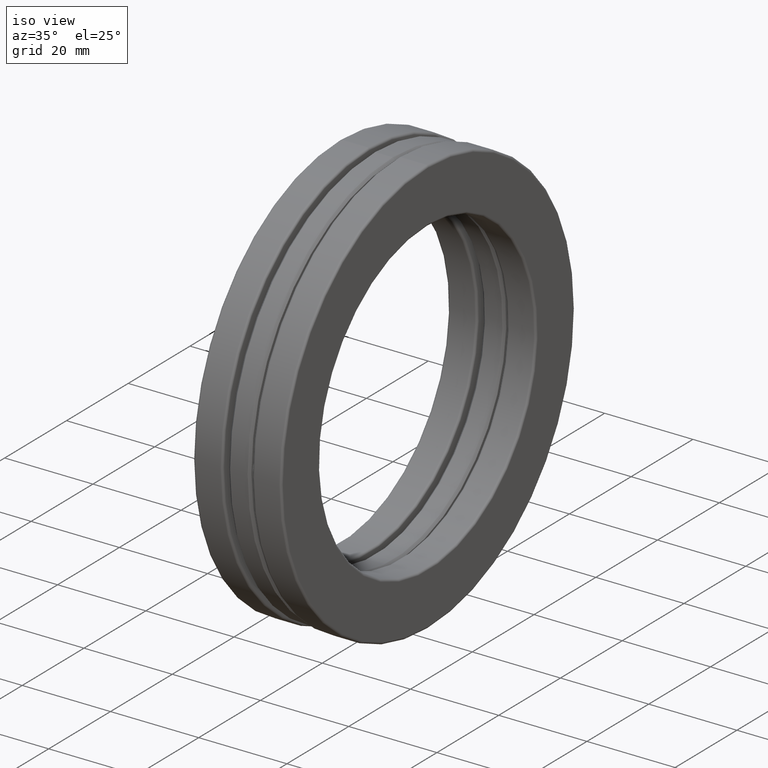
[diagram: clean part render]
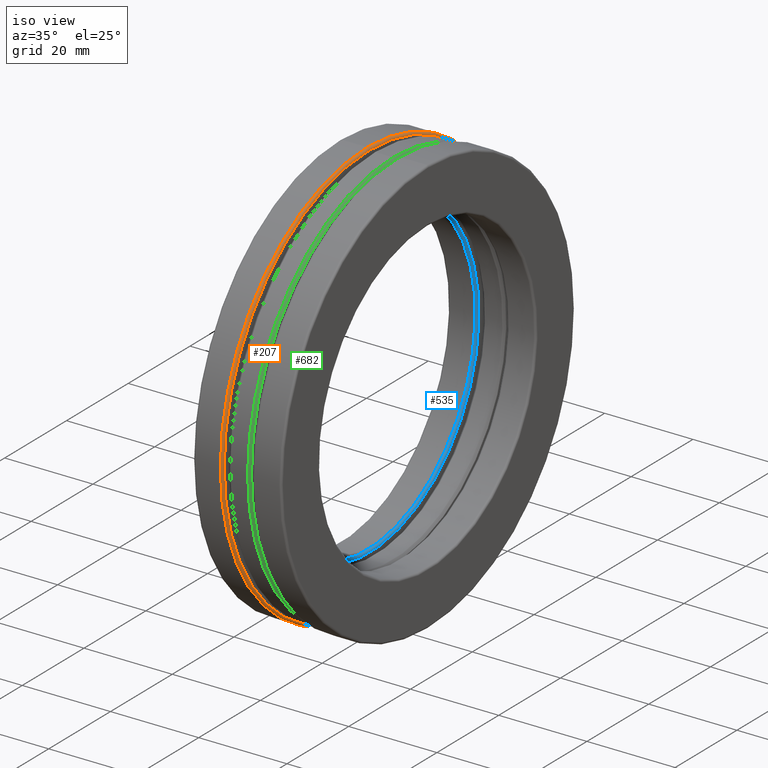
[diagram: same view with three faces highlighted in distinct colors, each labeled with its STEP entity id]
A machine part, iso view with three faces highlighted in distinct colors.
Their STEP definitions:

[orange] entity #207 — the highlighted toroidal blend (fillet) surface has major radius 46.99 mm and minor (blend) radius 0.508 mm.
#24 = DIRECTION ( 'NONE',  ( 0.0000000000000000000, 0.0000000000000000000, 1.000000000000000000 ) ) ;
#40 = DIRECTION ( 'NONE',  ( 0.0000000000000000000, 0.0000000000000000000, 1.000000000000000000 ) ) ;
#75 = CARTESIAN_POINT ( 'NONE',  ( -0.1311692899999999700, 0.0000000000000000000, 1.849999999999999900 ) ) ;
#104 = CARTESIAN_POINT ( 'NONE',  ( -0.1511692899999999600, 0.0000000000000000000, 0.0000000000000000000 ) ) ;
#134 = EDGE_LOOP ( 'NONE', ( #439 ) ) ;
#201 = CARTESIAN_POINT ( 'NONE',  ( -0.1511692899999999600, 0.0000000000000000000, 1.870000000000000100 ) ) ;
#207 = ADVANCED_FACE ( 'NONE', ( #765, #219 ), #273, .T. ) ;
#219 = FACE_OUTER_BOUND ( 'NONE', #685, .T. ) ;
#232 = DIRECTION ( 'NONE',  ( -1.000000000000000000, -0.0000000000000000000, -0.0000000000000000000 ) ) ;
#248 = DIRECTION ( 'NONE',  ( -1.000000000000000000, -0.0000000000000000000, -0.0000000000000000000 ) ) ;
#273 = TOROIDAL_SURFACE ( 'NONE', #815, 1.849999999999999900, 0.02000000000000002500 ) ;
#307 = VERTEX_POINT ( 'NONE', #201 ) ;
#318 = DIRECTION ( 'NONE',  ( 0.0000000000000000000, 0.0000000000000000000, 1.000000000000000000 ) ) ;
#361 = ORIENTED_EDGE ( 'NONE', *, *, #370, .T. ) ;
#370 = EDGE_CURVE ( 'NONE', #602, #602, #475, .T. ) ;
#406 = DIRECTION ( 'NONE',  ( -1.000000000000000000, -0.0000000000000000000, -0.0000000000000000000 ) ) ;
#439 = ORIENTED_EDGE ( 'NONE', *, *, #569, .F. ) ;
#475 = CIRCLE ( 'NONE', #719, 1.849999999999999900 ) ;
#537 = CARTESIAN_POINT ( 'NONE',  ( -0.1311692899999999700, 0.0000000000000000000, 0.0000000000000000000 ) ) ;
#569 = EDGE_CURVE ( 'NONE', #307, #307, #694, .T. ) ;
#602 = VERTEX_POINT ( 'NONE', #75 ) ;
#624 = AXIS2_PLACEMENT_3D ( 'NONE', #104, #232, #40 ) ;
#647 = CARTESIAN_POINT ( 'NONE',  ( -0.1511692899999999600, 0.0000000000000000000, 0.0000000000000000000 ) ) ;
#685 = EDGE_LOOP ( 'NONE', ( #361 ) ) ;
#694 = CIRCLE ( 'NONE', #624, 1.870000000000000100 ) ;
#719 = AXIS2_PLACEMENT_3D ( 'NONE', #537, #406, #24 ) ;
#765 = FACE_OUTER_BOUND ( 'NONE', #134, .T. ) ;
#815 = AXIS2_PLACEMENT_3D ( 'NONE', #647, #248, #318 ) ;

[blue] entity #535 — the highlighted toroidal blend (fillet) surface has major radius 35.5092 mm and minor (blend) radius 0.508 mm.
#55 = TOROIDAL_SURFACE ( 'NONE', #747, 1.397999999999999900, 0.02000000000000000700 ) ;
#86 = EDGE_CURVE ( 'NONE', #262, #262, #795, .T. ) ;
#136 = CARTESIAN_POINT ( 'NONE',  ( -0.1311692899999998300, 0.0000000000000000000, 1.397999999999999900 ) ) ;
#137 = CARTESIAN_POINT ( 'NONE',  ( -0.1311692899999998300, 0.0000000000000000000, 0.0000000000000000000 ) ) ;
#168 = CIRCLE ( 'NONE', #659, 1.397999999999999900 ) ;
#182 = ORIENTED_EDGE ( 'NONE', *, *, #86, .T. ) ;
#253 = EDGE_LOOP ( 'NONE', ( #297 ) ) ;
#262 = VERTEX_POINT ( 'NONE', #652 ) ;
#270 = VERTEX_POINT ( 'NONE', #136 ) ;
#294 = DIRECTION ( 'NONE',  ( -1.000000000000000000, -0.0000000000000000000, -0.0000000000000000000 ) ) ;
#295 = CARTESIAN_POINT ( 'NONE',  ( -0.1511692899999998200, 0.0000000000000000000, 0.0000000000000000000 ) ) ;
#297 = ORIENTED_EDGE ( 'NONE', *, *, #417, .F. ) ;
#298 = DIRECTION ( 'NONE',  ( -1.000000000000000000, -0.0000000000000000000, -0.0000000000000000000 ) ) ;
#311 = DIRECTION ( 'NONE',  ( 0.0000000000000000000, 0.0000000000000000000, 1.000000000000000000 ) ) ;
#342 = DIRECTION ( 'NONE',  ( -1.000000000000000000, -0.0000000000000000000, -0.0000000000000000000 ) ) ;
#363 = CARTESIAN_POINT ( 'NONE',  ( -0.1511692899999997900, 0.0000000000000000000, 0.0000000000000000000 ) ) ;
#417 = EDGE_CURVE ( 'NONE', #270, #270, #168, .T. ) ;
#535 = ADVANCED_FACE ( 'NONE', ( #725, #583 ), #55, .T. ) ;
#583 = FACE_OUTER_BOUND ( 'NONE', #676, .T. ) ;
#600 = DIRECTION ( 'NONE',  ( 0.0000000000000000000, 0.0000000000000000000, 1.000000000000000000 ) ) ;
#652 = CARTESIAN_POINT ( 'NONE',  ( -0.1511692899999998200, 0.0000000000000000000, 1.377999999999999900 ) ) ;
#659 = AXIS2_PLACEMENT_3D ( 'NONE', #137, #342, #600 ) ;
#676 = EDGE_LOOP ( 'NONE', ( #182 ) ) ;
#679 = DIRECTION ( 'NONE',  ( 0.0000000000000000000, 0.0000000000000000000, 1.000000000000000000 ) ) ;
#725 = FACE_OUTER_BOUND ( 'NONE', #253, .T. ) ;
#729 = AXIS2_PLACEMENT_3D ( 'NONE', #295, #298, #311 ) ;
#747 = AXIS2_PLACEMENT_3D ( 'NONE', #363, #294, #679 ) ;
#795 = CIRCLE ( 'NONE', #729, 1.377999999999999900 ) ;

[green] entity #682 — the highlighted conical surface has half-angle 45 deg.
#28 = CIRCLE ( 'NONE', #222, 1.829999999999999600 ) ;
#50 = DIRECTION ( 'NONE',  ( -1.000000000000000000, -0.0000000000000000000, -0.0000000000000000000 ) ) ;
#58 = AXIS2_PLACEMENT_3D ( 'NONE', #259, #649, #702 ) ;
#81 = ORIENTED_EDGE ( 'NONE', *, *, #274, .F. ) ;
#169 = EDGE_CURVE ( 'NONE', #673, #673, #28, .T. ) ;
#222 = AXIS2_PLACEMENT_3D ( 'NONE', #813, #50, #633 ) ;
#225 = VERTEX_POINT ( 'NONE', #716 ) ;
#259 = CARTESIAN_POINT ( 'NONE',  ( 0.07837499999999998600, 0.0000000000000000000, 0.0000000000000000000 ) ) ;
#260 = CONICAL_SURFACE ( 'NONE', #348, 1.849999999999999600, 0.7853981633974491700 ) ;
#274 = EDGE_CURVE ( 'NONE', #225, #225, #666, .T. ) ;
#285 = FACE_BOUND ( 'NONE', #653, .T. ) ;
#348 = AXIS2_PLACEMENT_3D ( 'NONE', #577, #818, #452 ) ;
#450 = FACE_OUTER_BOUND ( 'NONE', #753, .T. ) ;
#452 = DIRECTION ( 'NONE',  ( 0.0000000000000000000, 0.0000000000000000000, 1.000000000000000000 ) ) ;
#467 = CARTESIAN_POINT ( 'NONE',  ( 0.09837500000000001800, 0.0000000000000000000, 1.829999999999999600 ) ) ;
#559 = ORIENTED_EDGE ( 'NONE', *, *, #169, .T. ) ;
#577 = CARTESIAN_POINT ( 'NONE',  ( 0.07837499999999998600, 0.0000000000000000000, 0.0000000000000000000 ) ) ;
#633 = DIRECTION ( 'NONE',  ( 0.0000000000000000000, 0.0000000000000000000, 1.000000000000000000 ) ) ;
#649 = DIRECTION ( 'NONE',  ( -1.000000000000000000, -0.0000000000000000000, -0.0000000000000000000 ) ) ;
#653 = EDGE_LOOP ( 'NONE', ( #559 ) ) ;
#666 = CIRCLE ( 'NONE', #58, 1.849999999999999600 ) ;
#673 = VERTEX_POINT ( 'NONE', #467 ) ;
#682 = ADVANCED_FACE ( 'NONE', ( #285, #450 ), #260, .T. ) ;
#702 = DIRECTION ( 'NONE',  ( 0.0000000000000000000, 0.0000000000000000000, 1.000000000000000000 ) ) ;
#716 = CARTESIAN_POINT ( 'NONE',  ( 0.07837499999999998600, 0.0000000000000000000, 1.849999999999999600 ) ) ;
#753 = EDGE_LOOP ( 'NONE', ( #81 ) ) ;
#813 = CARTESIAN_POINT ( 'NONE',  ( 0.09837500000000001800, 0.0000000000000000000, 0.0000000000000000000 ) ) ;
#818 = DIRECTION ( 'NONE',  ( -1.000000000000000000, -0.0000000000000000000, -0.0000000000000000000 ) ) ;